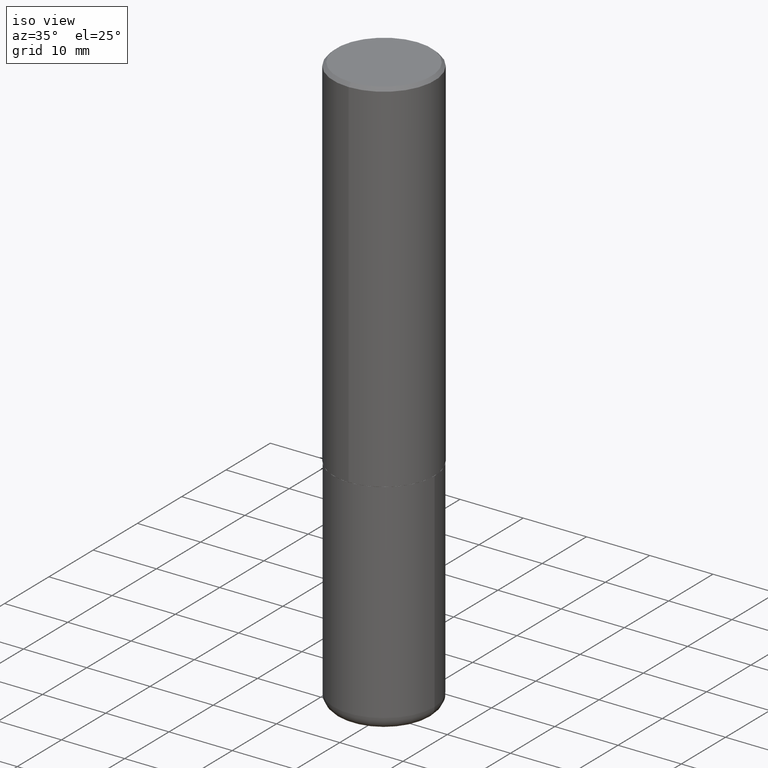
[diagram: clean part render]
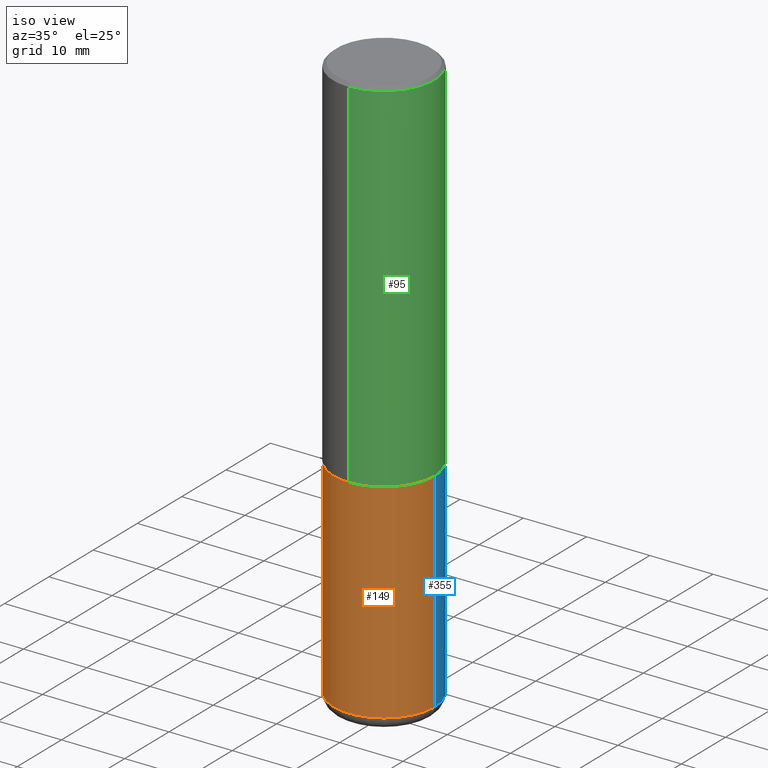
[diagram: same view with three faces highlighted in distinct colors, each labeled with its STEP entity id]
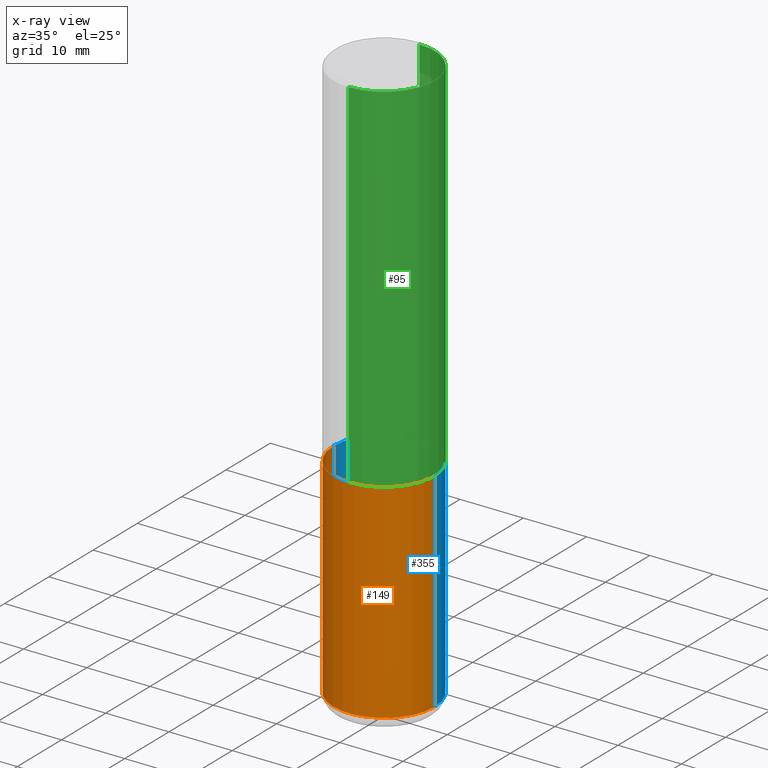
[diagram: x-ray of the same camera — body ghosted, the three highlighted faces saturated]
A machine part, iso view with three faces highlighted in distinct colors.
The next image is the same camera in x-ray (body ghosted, the three faces saturated) — at least one of them is partly hidden behind the body in this view.
Their STEP definitions:

[orange] entity #149 — the highlighted cylindrical surface (partial cylindrical patch) has radius 7.9997 mm, axis along (-0, 0, 1).
#11 = EDGE_LOOP ( 'NONE', ( #270, #60, #55, #53 ) ) ;
#21 = CARTESIAN_POINT ( 'NONE',  ( -0.3149500000000000077, -7.865270629867031177E-15, -2.243999999999999773 ) ) ;
#23 = AXIS2_PLACEMENT_3D ( 'NONE', #229, #44, #71 ) ;
#30 = VECTOR ( 'NONE', #199, 39.37007874015748143 ) ;
#42 = AXIS2_PLACEMENT_3D ( 'NONE', #244, #188, #316 ) ;
#44 = DIRECTION ( 'NONE',  ( -2.445468806185136597E-29, 3.491481338843145583E-15, 1.000000000000000000 ) ) ;
#53 = ORIENTED_EDGE ( 'NONE', *, *, #351, .F. ) ;
#55 = ORIENTED_EDGE ( 'NONE', *, *, #291, .T. ) ;
#59 = VECTOR ( 'NONE', #164, 39.37007874015748143 ) ;
#60 = ORIENTED_EDGE ( 'NONE', *, *, #211, .T. ) ;
#69 = DIRECTION ( 'NONE',  ( -2.445468806185136597E-29, 3.491481338843145583E-15, 1.000000000000000000 ) ) ;
#71 = DIRECTION ( 'NONE',  ( 1.000000000000000000, -6.982962677686266711E-15, 0.000000000000000000 ) ) ;
#98 = CARTESIAN_POINT ( 'NONE',  ( -0.3149500000000000077, 2.237854346276435590E-15, -1.549218606675782676E-29 ) ) ;
#148 = CARTESIAN_POINT ( 'NONE',  ( 0.3149500000000000077, -1.457064992326020852E-14, -3.543299999999999894 ) ) ;
#149 = ADVANCED_FACE ( 'NONE', ( #379 ), #376, .T. ) ;
#150 = VERTEX_POINT ( 'NONE', #246 ) ;
#164 = DIRECTION ( 'NONE',  ( -2.445468806185136877E-29, 3.491481338843145188E-15, 1.000000000000000000 ) ) ;
#167 = CIRCLE ( 'NONE', #311, 0.3149500000000000077 ) ;
#172 = VERTEX_POINT ( 'NONE', #148 ) ;
#188 = DIRECTION ( 'NONE',  ( -2.445468806185136597E-29, 3.491481338843145583E-15, 1.000000000000000000 ) ) ;
#199 = DIRECTION ( 'NONE',  ( -2.445468806185136877E-29, 3.491481338843145188E-15, 1.000000000000000000 ) ) ;
#200 = CIRCLE ( 'NONE', #23, 0.3149500000000000077 ) ;
#211 = EDGE_CURVE ( 'NONE', #150, #172, #167, .T. ) ;
#229 = CARTESIAN_POINT ( 'NONE',  ( 5.487632001079445967E-29, -7.834884124364017250E-15, -2.243999999999999773 ) ) ;
#244 = CARTESIAN_POINT ( 'NONE',  ( 0.000000000000000000, 0.000000000000000000, 0.000000000000000000 ) ) ;
#246 = CARTESIAN_POINT ( 'NONE',  ( -0.3149500000000000077, -1.013351148164647951E-14, -3.543299999999999894 ) ) ;
#253 = LINE ( 'NONE', #260, #59 ) ;
#259 = EDGE_CURVE ( 'NONE', #150, #367, #361, .T. ) ;
#260 = CARTESIAN_POINT ( 'NONE',  ( 0.3149500000000000077, -2.199284095337289871E-15, 1.535751875536930130E-29 ) ) ;
#269 = VERTEX_POINT ( 'NONE', #402 ) ;
#270 = ORIENTED_EDGE ( 'NONE', *, *, #259, .F. ) ;
#291 = EDGE_CURVE ( 'NONE', #172, #269, #253, .T. ) ;
#311 = AXIS2_PLACEMENT_3D ( 'NONE', #321, #69, #325 ) ;
#316 = DIRECTION ( 'NONE',  ( 1.000000000000000000, -6.982962677686266711E-15, 4.876176775795936353E-29 ) ) ;
#321 = CARTESIAN_POINT ( 'NONE',  ( 8.665029620955794069E-29, -1.237136582792291707E-14, -3.543299999999999894 ) ) ;
#325 = DIRECTION ( 'NONE',  ( 1.000000000000000000, -6.982962677686269866E-15, 0.000000000000000000 ) ) ;
#351 = EDGE_CURVE ( 'NONE', #367, #269, #200, .T. ) ;
#361 = LINE ( 'NONE', #98, #30 ) ;
#367 = VERTEX_POINT ( 'NONE', #21 ) ;
#376 = CYLINDRICAL_SURFACE ( 'NONE', #42, 0.3149500000000000077 ) ;
#379 = FACE_OUTER_BOUND ( 'NONE', #11, .T. ) ;
#402 = CARTESIAN_POINT ( 'NONE',  ( 0.3149500000000000077, -1.003416821970130712E-14, -2.243999999999999773 ) ) ;

[blue] entity #355 — the highlighted cylindrical surface (partial cylindrical patch) has radius 7.9997 mm, axis along (-0, 0, 1).
#4 = DIRECTION ( 'NONE',  ( -2.445468806185136597E-29, 3.491481338843145583E-15, 1.000000000000000000 ) ) ;
#7 = CIRCLE ( 'NONE', #400, 0.3149500000000000077 ) ;
#13 = EDGE_LOOP ( 'NONE', ( #180, #20, #133, #298 ) ) ;
#16 = DIRECTION ( 'NONE',  ( 1.000000000000000000, -6.982962677686266711E-15, 4.876176775795936353E-29 ) ) ;
#20 = ORIENTED_EDGE ( 'NONE', *, *, #259, .T. ) ;
#21 = CARTESIAN_POINT ( 'NONE',  ( -0.3149500000000000077, -7.865270629867031177E-15, -2.243999999999999773 ) ) ;
#30 = VECTOR ( 'NONE', #199, 39.37007874015748143 ) ;
#31 = CIRCLE ( 'NONE', #417, 0.3149500000000000077 ) ;
#41 = DIRECTION ( 'NONE',  ( 1.000000000000000000, -6.982962677686266711E-15, 0.000000000000000000 ) ) ;
#59 = VECTOR ( 'NONE', #164, 39.37007874015748143 ) ;
#98 = CARTESIAN_POINT ( 'NONE',  ( -0.3149500000000000077, 2.237854346276435590E-15, -1.549218606675782676E-29 ) ) ;
#110 = DIRECTION ( 'NONE',  ( -2.445468806185136597E-29, 3.491481338843145583E-15, 1.000000000000000000 ) ) ;
#133 = ORIENTED_EDGE ( 'NONE', *, *, #231, .F. ) ;
#148 = CARTESIAN_POINT ( 'NONE',  ( 0.3149500000000000077, -1.457064992326020852E-14, -3.543299999999999894 ) ) ;
#150 = VERTEX_POINT ( 'NONE', #246 ) ;
#159 = AXIS2_PLACEMENT_3D ( 'NONE', #305, #239, #16 ) ;
#164 = DIRECTION ( 'NONE',  ( -2.445468806185136877E-29, 3.491481338843145188E-15, 1.000000000000000000 ) ) ;
#172 = VERTEX_POINT ( 'NONE', #148 ) ;
#180 = ORIENTED_EDGE ( 'NONE', *, *, #391, .T. ) ;
#197 = FACE_OUTER_BOUND ( 'NONE', #13, .T. ) ;
#199 = DIRECTION ( 'NONE',  ( -2.445468806185136877E-29, 3.491481338843145188E-15, 1.000000000000000000 ) ) ;
#231 = EDGE_CURVE ( 'NONE', #269, #367, #7, .T. ) ;
#239 = DIRECTION ( 'NONE',  ( -2.445468806185136597E-29, 3.491481338843145583E-15, 1.000000000000000000 ) ) ;
#246 = CARTESIAN_POINT ( 'NONE',  ( -0.3149500000000000077, -1.013351148164647951E-14, -3.543299999999999894 ) ) ;
#253 = LINE ( 'NONE', #260, #59 ) ;
#259 = EDGE_CURVE ( 'NONE', #150, #367, #361, .T. ) ;
#260 = CARTESIAN_POINT ( 'NONE',  ( 0.3149500000000000077, -2.199284095337289871E-15, 1.535751875536930130E-29 ) ) ;
#269 = VERTEX_POINT ( 'NONE', #402 ) ;
#271 = CARTESIAN_POINT ( 'NONE',  ( 8.665029620955794069E-29, -1.237136582792291707E-14, -3.543299999999999894 ) ) ;
#291 = EDGE_CURVE ( 'NONE', #172, #269, #253, .T. ) ;
#298 = ORIENTED_EDGE ( 'NONE', *, *, #291, .F. ) ;
#305 = CARTESIAN_POINT ( 'NONE',  ( 0.000000000000000000, 0.000000000000000000, 0.000000000000000000 ) ) ;
#328 = CYLINDRICAL_SURFACE ( 'NONE', #159, 0.3149500000000000077 ) ;
#338 = DIRECTION ( 'NONE',  ( 1.000000000000000000, -6.982962677686269866E-15, 0.000000000000000000 ) ) ;
#355 = ADVANCED_FACE ( 'NONE', ( #197 ), #328, .T. ) ;
#361 = LINE ( 'NONE', #98, #30 ) ;
#362 = CARTESIAN_POINT ( 'NONE',  ( 5.487632001079445967E-29, -7.834884124364017250E-15, -2.243999999999999773 ) ) ;
#367 = VERTEX_POINT ( 'NONE', #21 ) ;
#391 = EDGE_CURVE ( 'NONE', #172, #150, #31, .T. ) ;
#400 = AXIS2_PLACEMENT_3D ( 'NONE', #362, #4, #41 ) ;
#402 = CARTESIAN_POINT ( 'NONE',  ( 0.3149500000000000077, -1.003416821970130712E-14, -2.243999999999999773 ) ) ;
#417 = AXIS2_PLACEMENT_3D ( 'NONE', #271, #110, #338 ) ;

[green] entity #95 — the highlighted cylindrical surface (partial cylindrical patch) has radius 7.9997 mm, axis along (-0, 0, 1).
#14 = DIRECTION ( 'NONE',  ( -2.445731576433639542E-29, 3.491105036891335583E-15, 1.000000000000000000 ) ) ;
#32 = EDGE_CURVE ( 'NONE', #210, #373, #358, .T. ) ;
#34 = CARTESIAN_POINT ( 'NONE',  ( 5.485775925940652970E-29, -7.830548597747266147E-15, -2.242999999999999883 ) ) ;
#49 = ORIENTED_EDGE ( 'NONE', *, *, #286, .T. ) ;
#57 = DIRECTION ( 'NONE',  ( -6.982962677686265922E-15, -1.000000000000000000, 3.496670018878888311E-15 ) ) ;
#61 = CARTESIAN_POINT ( 'NONE',  ( 0.000000000000000000, 0.000000000000000000, 0.000000000000000000 ) ) ;
#67 = DIRECTION ( 'NONE',  ( -6.982962677686264344E-15, -1.000000000000000000, 3.491105036891335189E-15 ) ) ;
#73 = AXIS2_PLACEMENT_3D ( 'NONE', #61, #225, #67 ) ;
#87 = ORIENTED_EDGE ( 'NONE', *, *, #123, .F. ) ;
#88 = DIRECTION ( 'NONE',  ( -6.982962677686265922E-15, -1.000000000000000000, 3.469564049740290009E-15 ) ) ;
#89 = CIRCLE ( 'NONE', #390, 0.3149500000000002853 ) ;
#90 = FACE_OUTER_BOUND ( 'NONE', #334, .T. ) ;
#94 = CARTESIAN_POINT ( 'NONE',  ( -2.160713844398143757E-15, -0.3149500000000001743, -0.01999999999999896652 ) ) ;
#95 = ADVANCED_FACE ( 'NONE', ( #90 ), #214, .T. ) ;
#108 = ORIENTED_EDGE ( 'NONE', *, *, #32, .F. ) ;
#123 = EDGE_CURVE ( 'NONE', #206, #210, #154, .T. ) ;
#128 = LINE ( 'NONE', #236, #363 ) ;
#154 = LINE ( 'NONE', #185, #186 ) ;
#158 = EDGE_CURVE ( 'NONE', #206, #304, #89, .T. ) ;
#178 = CARTESIAN_POINT ( 'NONE',  ( 2.199284095337290265E-15, 0.3149500000000000077, -0.02000000000000116962 ) ) ;
#185 = CARTESIAN_POINT ( 'NONE',  ( -2.199284095337290265E-15, -0.3149500000000001743, 1.099523531368926621E-15 ) ) ;
#186 = VECTOR ( 'NONE', #314, 39.37007874015748143 ) ;
#189 = AXIS2_PLACEMENT_3D ( 'NONE', #357, #290, #57 ) ;
#206 = VERTEX_POINT ( 'NONE', #317 ) ;
#210 = VERTEX_POINT ( 'NONE', #94 ) ;
#214 = CYLINDRICAL_SURFACE ( 'NONE', #73, 0.3149500000000001743 ) ;
#225 = DIRECTION ( 'NONE',  ( -2.445731576433639542E-29, 3.491105036891335583E-15, 1.000000000000000000 ) ) ;
#236 = CARTESIAN_POINT ( 'NONE',  ( 2.237854346276435985E-15, 0.3149500000000001743, -1.099523531368926621E-15 ) ) ;
#263 = CARTESIAN_POINT ( 'NONE',  ( 2.237854346276464384E-15, 0.3149499999999924027, -2.243000000000000771 ) ) ;
#275 = DIRECTION ( 'NONE',  ( -2.445731576433639542E-29, 3.491105036891335583E-15, 1.000000000000000000 ) ) ;
#286 = EDGE_CURVE ( 'NONE', #304, #373, #128, .T. ) ;
#287 = ORIENTED_EDGE ( 'NONE', *, *, #158, .T. ) ;
#290 = DIRECTION ( 'NONE',  ( -2.445731576433639542E-29, 3.491105036891335583E-15, 1.000000000000000000 ) ) ;
#304 = VERTEX_POINT ( 'NONE', #263 ) ;
#314 = DIRECTION ( 'NONE',  ( -2.445731576433639542E-29, 3.491105036891335583E-15, 1.000000000000000000 ) ) ;
#317 = CARTESIAN_POINT ( 'NONE',  ( -2.199284095337236228E-15, -0.3149500000000081124, -2.242999999999998550 ) ) ;
#334 = EDGE_LOOP ( 'NONE', ( #287, #49, #108, #87 ) ) ;
#357 = CARTESIAN_POINT ( 'NONE',  ( 4.891463152867296425E-31, -6.982210073782693945E-17, -0.02000000000000006981 ) ) ;
#358 = CIRCLE ( 'NONE', #189, 0.3149500000000000632 ) ;
#363 = VECTOR ( 'NONE', #14, 39.37007874015748143 ) ;
#373 = VERTEX_POINT ( 'NONE', #178 ) ;
#390 = AXIS2_PLACEMENT_3D ( 'NONE', #34, #275, #88 ) ;